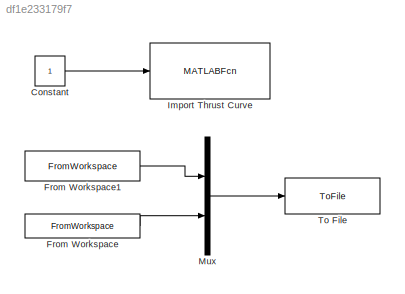
MODEL slx_df1e233179f7
KIND model
BLOCK [Constant] Constant
BLOCK [FromWorkspace] From Workspace
  SampleTime = 0
  VariableName = ThrustD
  ZeroCross = on
BLOCK [FromWorkspace] From Workspace1
  SampleTime = 0
  VariableName = burntime
  ZeroCross = on
BLOCK [MATLABFcn] Import Thrust Curve
  MATLABFcn = thrust_data_import
  Ports = [1, 1]
BLOCK [Mux] Mux
  DisplayOption = bar
  Inputs = 2
  Ports = [2, 1]
BLOCK [ToFile] To File
  Filename = thrust_curve.mat
  MatrixName = ThrustD
  Ports = [1]
LINE Constant:1 -> Import Thrust Curve:1
LINE From Workspace1:1 -> Mux:1
LINE From Workspace:1 -> Mux:2
LINE Mux:1 -> To File:1
